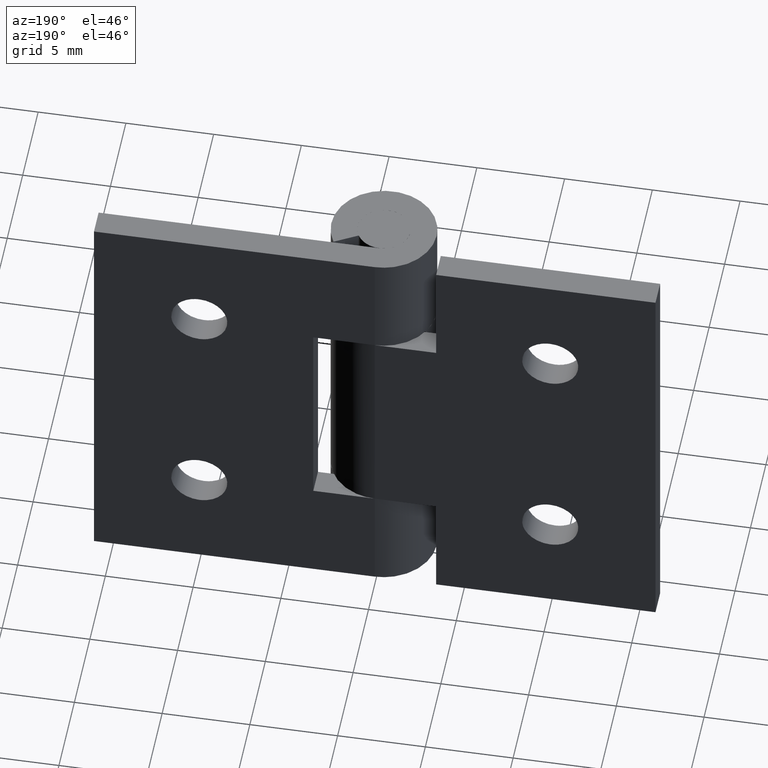
[diagram: clean part render]
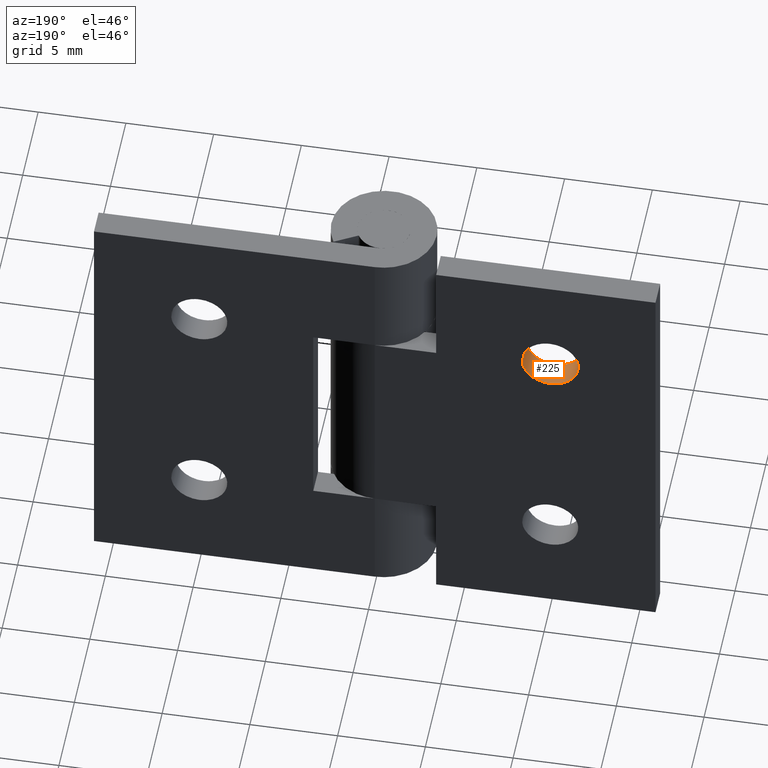
[diagram: same view with one face highlighted and labeled with its STEP entity id]
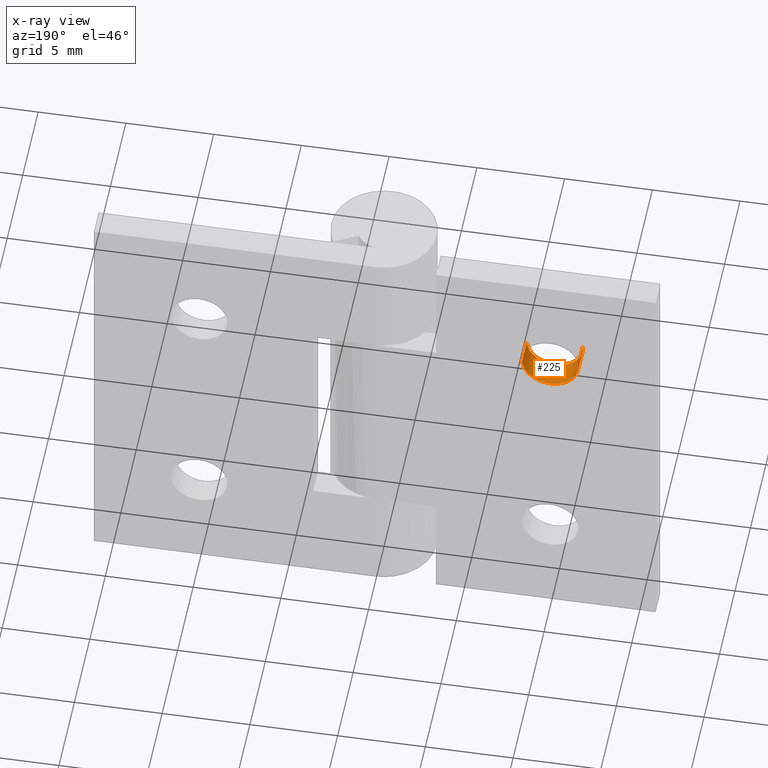
[diagram: x-ray of the same camera — body ghosted, the highlighted face saturated]
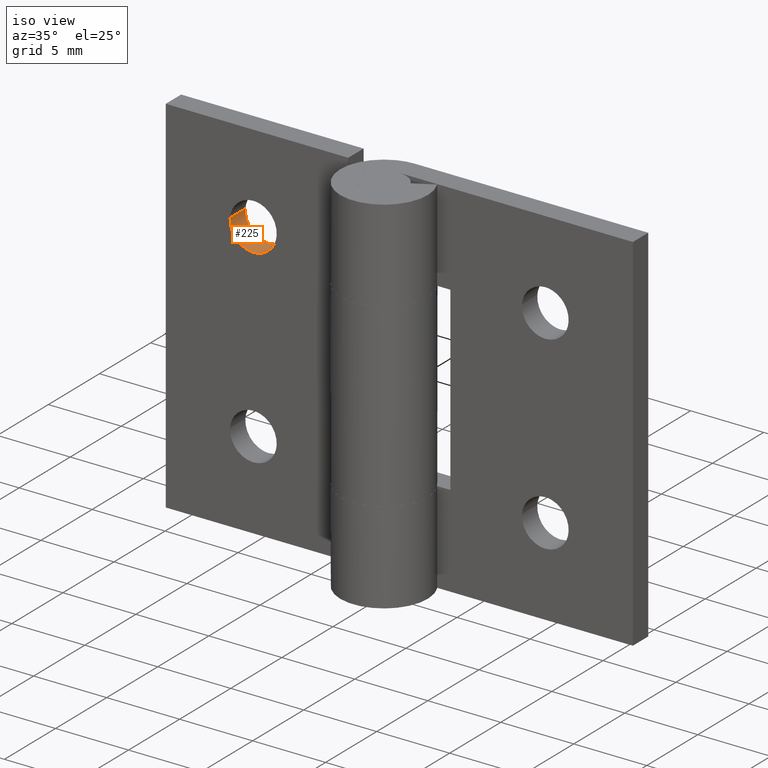
[diagram: same view with one face highlighted and labeled with its STEP entity id]
A machine part, auxiliary view. The second image highlights one B-rep face of the part: STEP entity #225.
The next image is the same camera in x-ray: the body ghosted, the highlighted face saturated — about 0% of this face is hidden behind the body in this view.
A second angle (iso view) of the same face is appended — the face is thin or edge-on in the first view.
In plain terms, the highlighted face is a freeform B-spline surface patch.
Its self-contained STEP definition (entity closure, byte-faithful):
#64=CARTESIAN_POINT('',(-11.595067733969790,3.0,19.125534553205380));
#65=VERTEX_POINT('',#64);
#79=CARTESIAN_POINT('',(-8.404932266030210,3.0,18.874465446794620));
#80=VERTEX_POINT('',#79);
#96=CARTESIAN_POINT('',(-8.404932266030210,1.499999999999946,18.874465446794620));
#97=VERTEX_POINT('',#96);
#98=CARTESIAN_POINT('',(-8.404932266030210,1.499999999999946,18.874465446794620));
#99=CARTESIAN_POINT('',(-8.404932266030210,3.0,18.874465446794620));
#100=QUASI_UNIFORM_CURVE('',1,(#98,#99),.UNSPECIFIED.,.F.,.U.);
#101=EDGE_CURVE('',#97,#80,#100,.T.);
#120=CARTESIAN_POINT('',(-11.595067733969790,1.499999999999946,19.125534553205380));
#121=VERTEX_POINT('',#120);
#135=CARTESIAN_POINT('',(-11.595067733969790,1.499999999999946,19.125534553205380));
#136=CARTESIAN_POINT('',(-11.595067733969790,3.0,19.125534553205380));
#137=QUASI_UNIFORM_CURVE('',1,(#135,#136),.UNSPECIFIED.,.F.,.U.);
#138=EDGE_CURVE('',#121,#65,#137,.T.);
#143=CARTESIAN_POINT('',(-8.404932266026997,1.462499999999944,18.874465446835451));
#144=CARTESIAN_POINT('',(-8.530466819191549,1.462499999999944,17.279397712862437));
#145=CARTESIAN_POINT('',(-10.125534553164551,1.462499999999944,17.404932266027000));
#146=CARTESIAN_POINT('',(-11.720602287137556,1.462499999999944,17.530466819191545));
#147=CARTESIAN_POINT('',(-11.595067733973000,1.462499999999944,19.125534553164549));
#148=CARTESIAN_POINT('',(-8.404932266026997,3.038437500000002,18.874465446835451));
#149=CARTESIAN_POINT('',(-8.530466819191549,3.038437500000002,17.279397712862437));
#150=CARTESIAN_POINT('',(-10.125534553164551,3.038437500000002,17.404932266027000));
#151=CARTESIAN_POINT('',(-11.720602287137556,3.038437500000002,17.530466819191545));
#152=CARTESIAN_POINT('',(-11.595067733973000,3.038437500000002,19.125534553164549));
#160=(BOUNDED_SURFACE()B_SPLINE_SURFACE(2,1,((#143,#148),(#144,#149),(#145,#150),(#146,#151),(#147,#152)),.UNSPECIFIED.,.F.,.F.,.U.)B_SPLINE_SURFACE_WITH_KNOTS((3,2,3),(2,2),(0.0,1.570796326794897,3.141592653589793),(0.0,1.0),.UNSPECIFIED.)GEOMETRIC_REPRESENTATION_ITEM()RATIONAL_B_SPLINE_SURFACE(((1.0,1.0),(0.707106781186548,0.707106781186548),(1.0,1.0),(0.707106781186548,0.707106781186548),(1.0,1.0)))REPRESENTATION_ITEM('')SURFACE());
#161=CARTESIAN_POINT('',(-10.0,3.0,17.399999999999999));
#162=VERTEX_POINT('',#161);
#163=CARTESIAN_POINT('',(-11.595067733969792,3.000000000000000,19.125534553205384));
#164=CARTESIAN_POINT('',(-11.600000000000001,3.000000000000000,19.062864171253299));
#165=CARTESIAN_POINT('',(-11.600000000000000,3.0,19.0));
#166=CARTESIAN_POINT('',(-11.600000000000001,3.0,17.400000000000002));
#167=CARTESIAN_POINT('',(-10.0,3.0,17.399999999999999));
#175=(BOUNDED_CURVE()B_SPLINE_CURVE(2,(#163,#164,#165,#166,#167),.UNSPECIFIED.,.F.,.U.)B_SPLINE_CURVE_WITH_KNOTS((3,2,3),(0.236331300623990,0.250000000000000,0.500000000000000),.UNSPECIFIED.)CURVE()GEOMETRIC_REPRESENTATION_ITEM()RATIONAL_B_SPLINE_CURVE((0.969723356153499,0.983986122571068,1.0,0.707106781186548,1.0))REPRESENTATION_ITEM(''));
#176=EDGE_CURVE('',#65,#162,#175,.T.);
#177=ORIENTED_EDGE('',*,*,#176,.F.);
#178=ORIENTED_EDGE('',*,*,#138,.F.);
#179=CARTESIAN_POINT('',(-10.0,1.499999999999946,17.399999999999999));
#180=VERTEX_POINT('',#179);
#181=CARTESIAN_POINT('',(-11.595067733969788,1.499999999999946,19.125534553205387));
#182=CARTESIAN_POINT('',(-11.600000000000000,1.499999999999946,19.062864171253295));
#183=CARTESIAN_POINT('',(-11.600000000000000,1.499999999999946,19.0));
#184=CARTESIAN_POINT('',(-11.600000000000001,1.499999999999946,17.400000000000002));
#185=CARTESIAN_POINT('',(-10.0,1.499999999999946,17.399999999999999));
#193=(BOUNDED_CURVE()B_SPLINE_CURVE(2,(#181,#182,#183,#184,#185),.UNSPECIFIED.,.F.,.U.)B_SPLINE_CURVE_WITH_KNOTS((3,2,3),(0.236331300623990,0.250000000000000,0.500000000000000),.UNSPECIFIED.)CURVE()GEOMETRIC_REPRESENTATION_ITEM()RATIONAL_B_SPLINE_CURVE((0.969723356153499,0.983986122571068,1.0,0.707106781186548,1.0))REPRESENTATION_ITEM(''));
#194=EDGE_CURVE('',#121,#180,#193,.T.);
#195=ORIENTED_EDGE('',*,*,#194,.T.);
#196=CARTESIAN_POINT('',(-10.0,1.499999999999946,17.399999999999999));
#197=CARTESIAN_POINT('',(-8.520975213422821,1.499999999999946,17.400000000000002));
#198=CARTESIAN_POINT('',(-8.404932266030210,1.499999999999946,18.874465446794620));
#206=(BOUNDED_CURVE()B_SPLINE_CURVE(2,(#196,#197,#198),.UNSPECIFIED.,.F.,.U.)B_SPLINE_CURVE_WITH_KNOTS((3,3),(0.500000000000000,0.736331300623991),.UNSPECIFIED.)CURVE()GEOMETRIC_REPRESENTATION_ITEM()RATIONAL_B_SPLINE_CURVE((1.0,0.723120658615479,0.969723356153501))REPRESENTATION_ITEM(''));
#207=EDGE_CURVE('',#180,#97,#206,.T.);
#208=ORIENTED_EDGE('',*,*,#207,.T.);
#209=ORIENTED_EDGE('',*,*,#101,.T.);
#210=CARTESIAN_POINT('',(-10.0,3.0,17.399999999999999));
#211=CARTESIAN_POINT('',(-8.520975213422821,3.000000000000000,17.400000000000002));
#212=CARTESIAN_POINT('',(-8.404932266030210,3.0,18.874465446794620));
#220=(BOUNDED_CURVE()B_SPLINE_CURVE(2,(#210,#211,#212),.UNSPECIFIED.,.F.,.U.)B_SPLINE_CURVE_WITH_KNOTS((3,3),(0.500000000000000,0.736331300623991),.UNSPECIFIED.)CURVE()GEOMETRIC_REPRESENTATION_ITEM()RATIONAL_B_SPLINE_CURVE((1.0,0.723120658615479,0.969723356153501))REPRESENTATION_ITEM(''));
#221=EDGE_CURVE('',#162,#80,#220,.T.);
#222=ORIENTED_EDGE('',*,*,#221,.F.);
#223=EDGE_LOOP('',(#177,#178,#195,#208,#209,#222));
#224=FACE_OUTER_BOUND('',#223,.T.);
#225=ADVANCED_FACE('',(#224),#160,.F.);